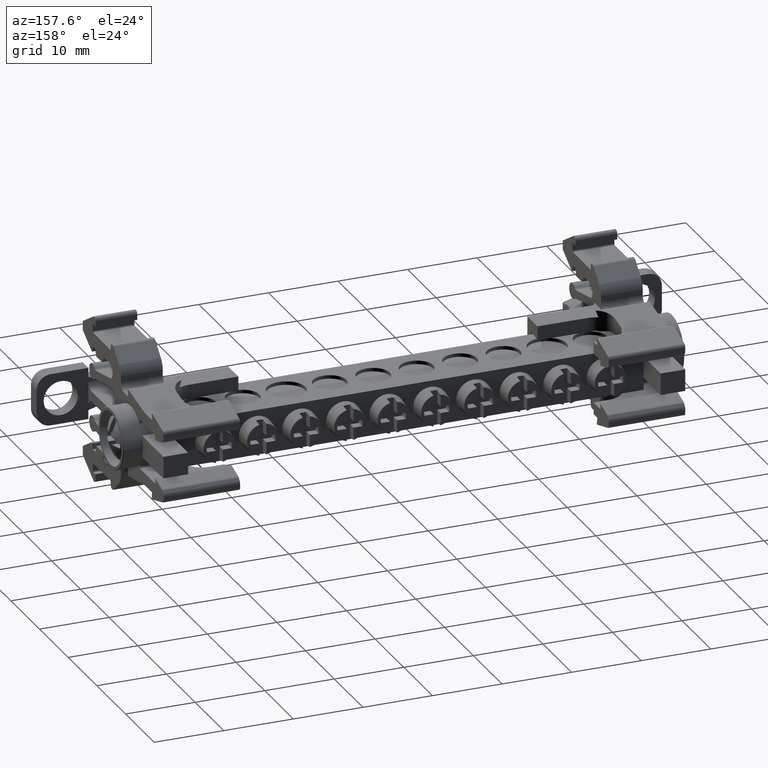
[diagram: clean part render]
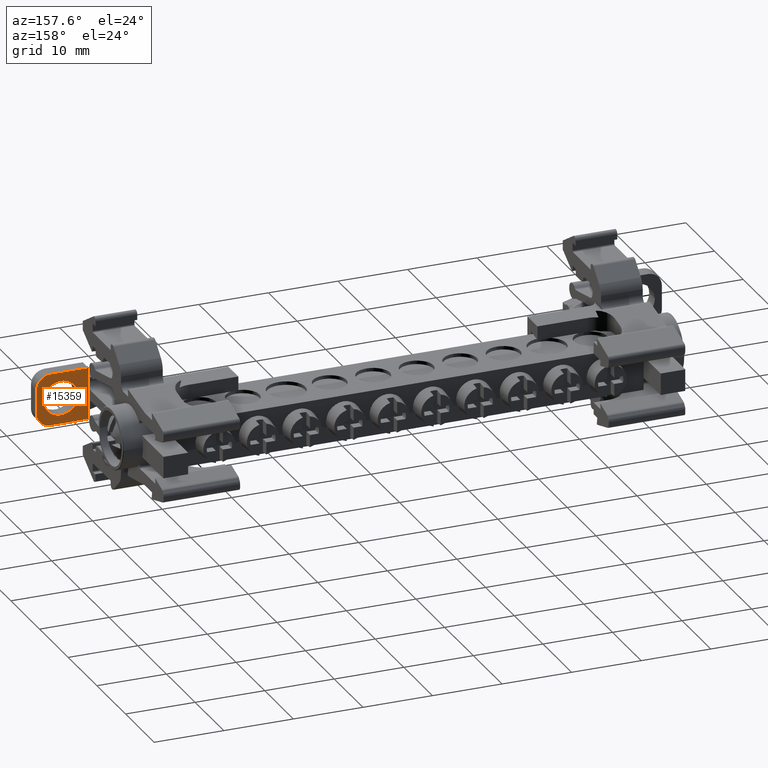
[diagram: same view with one face highlighted and labeled with its STEP entity id]
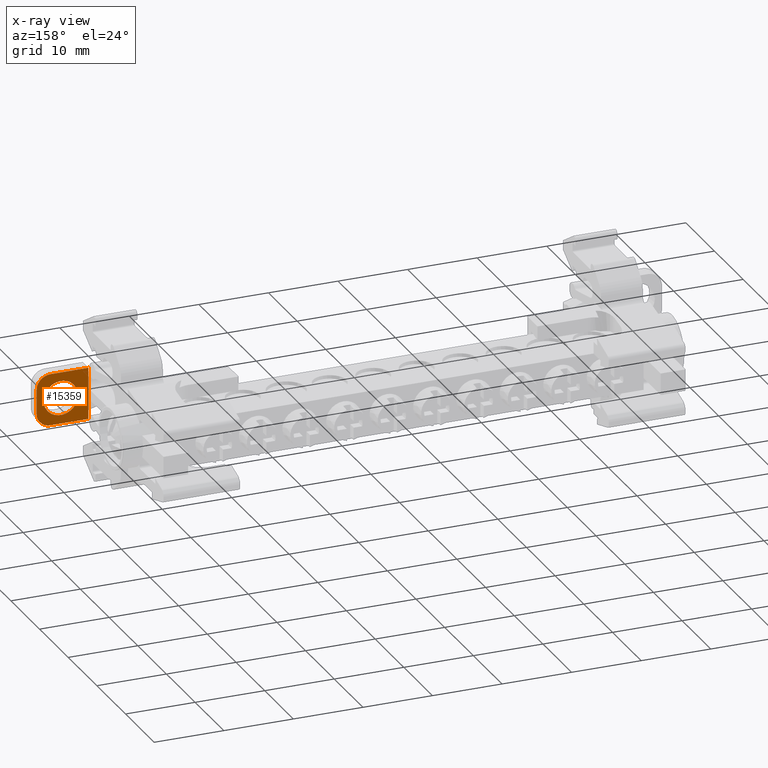
[diagram: x-ray of the same camera — body ghosted, the highlighted face saturated]
A machine part, auxiliary view. The second image highlights one B-rep face of the part: STEP entity #15359.
The next image is the same camera in x-ray: the body ghosted, the highlighted face saturated — about 0% of this face is hidden behind the body in this view.
In plain terms, the highlighted planar face has unit normal (-0, 1, 0).
Its self-contained STEP definition (entity closure, byte-faithful):
#312 = AXIS2_PLACEMENT_3D ( 'NONE', #6938, #6937, #6928 ) ;
#895 = VECTOR ( 'NONE', #9784, 1000.000000000000000 ) ;
#1224 = CARTESIAN_POINT ( 'NONE',  ( -46.38164581438638800, -110.7558111477206900, 217.7248630735140600 ) ) ;
#1253 = CARTESIAN_POINT ( 'NONE',  ( -48.36164581438639900, -110.7558111477207100, 219.7048630735139900 ) ) ;
#1320 = CARTESIAN_POINT ( 'NONE',  ( -46.38164581438638800, -110.7558111299313700, 214.2422331528850100 ) ) ;
#1327 = CARTESIAN_POINT ( 'NONE',  ( -48.36164581438636400, -110.7558111299314000, 212.2622331528850700 ) ) ;
#1467 = CARTESIAN_POINT ( 'NONE',  ( -53.82164581438635800, -110.7558110765636300, 218.3875323488580000 ) ) ;
#1503 = CARTESIAN_POINT ( 'NONE',  ( -53.82164581438637200, -110.7558111240017500, 219.7048630735139900 ) ) ;
#1520 = CARTESIAN_POINT ( 'NONE',  ( -53.82164581438632200, -110.7558111002826800, 213.5675638474400300 ) ) ;
#1707 = CARTESIAN_POINT ( 'NONE',  ( -53.82164581438629400, -110.7558111477208100, 219.7048630735139900 ) ) ;
#1715 = LINE ( 'NONE', #1707, #5722 ) ;
#1716 = DIRECTION ( 'NONE',  ( 1.000000000000000000, 1.101172293446148100E-014, -0.0000000000000000000 ) ) ;
#1752 = CARTESIAN_POINT ( 'NONE',  ( -48.36164581438639900, -110.7558111477206800, 217.7248630735140600 ) ) ;
#1790 = DIRECTION ( 'NONE',  ( -1.049160784736400100E-014, 1.000000000000000000, 2.802596928649635400E-045 ) ) ;
#1794 = DIRECTION ( 'NONE',  ( -1.000000000000000000, -7.008983741320423700E-015, 0.0000000000000000000 ) ) ;
#1807 = DIRECTION ( 'NONE',  ( -1.049160784736400100E-014, 1.000000000000000000, -9.044991914139729700E-037 ) ) ;
#1826 = CARTESIAN_POINT ( 'NONE',  ( -48.36164581438639900, -110.7558111121420700, 214.2422331528850100 ) ) ;
#1833 = DIRECTION ( 'NONE',  ( 1.000000000000000000, 7.008983741320423700E-015, 0.0000000000000000000 ) ) ;
#2912 = EDGE_CURVE ( 'NONE', #3584, #21435, #18791, .T. ) ;
#3076 = EDGE_CURVE ( 'NONE', #21444, #21460, #16243, .T. ) ;
#3584 = VERTEX_POINT ( 'NONE', #16282 ) ;
#4274 = VERTEX_POINT ( 'NONE', #6004 ) ;
#4299 = VERTEX_POINT ( 'NONE', #6124 ) ;
#5721 = CIRCLE ( 'NONE', #5731, 1.980000000000002600 ) ;
#5722 = VECTOR ( 'NONE', #1716, 1000.000000000000000 ) ;
#5723 = VECTOR ( 'NONE', #12213, 1000.000000000000000 ) ;
#5731 = AXIS2_PLACEMENT_3D ( 'NONE', #1752, #1790, #1794 ) ;
#5734 = CIRCLE ( 'NONE', #5736, 2.474999999999997900 ) ;
#5736 = AXIS2_PLACEMENT_3D ( 'NONE', #12210, #12185, #12186 ) ;
#5738 = CIRCLE ( 'NONE', #5748, 1.980000000000002600 ) ;
#5748 = AXIS2_PLACEMENT_3D ( 'NONE', #1826, #1807, #1833 ) ;
#5820 = VECTOR ( 'NONE', #11737, 1000.000000000000000 ) ;
#6004 = CARTESIAN_POINT ( 'NONE',  ( -52.33664581438639400, -110.7558111477206400, 215.9835481131995000 ) ) ;
#6124 = CARTESIAN_POINT ( 'NONE',  ( -47.38664581438639800, -110.7558111477205800, 215.9835481131995000 ) ) ;
#6928 = DIRECTION ( 'NONE',  ( -1.000000000000000000, -1.101172293446148100E-014, 0.0000000000000000000 ) ) ;
#6929 = PLANE ( 'NONE',  #312 ) ;
#6933 = FACE_OUTER_BOUND ( 'NONE', #8145, .T. ) ;
#6937 = DIRECTION ( 'NONE',  ( -1.101172293446148100E-014, 1.000000000000000000, 0.0000000000000000000 ) ) ;
#6938 = CARTESIAN_POINT ( 'NONE',  ( -53.82164581438629400, -110.7558111477208100, 188.2738655272060600 ) ) ;
#6942 = FACE_BOUND ( 'NONE', #8173, .T. ) ;
#8145 = EDGE_LOOP ( 'NONE', ( #20038, #20010, #20016, #20018, #20034, #20003, #19333, #19320 ) ) ;
#8173 = EDGE_LOOP ( 'NONE', ( #19318, #19335 ) ) ;
#9755 = LINE ( 'NONE', #9779, #895 ) ;
#9779 = CARTESIAN_POINT ( 'NONE',  ( -53.82164581438627200, -110.7558110765636300, 188.2738655272060600 ) ) ;
#9784 = DIRECTION ( 'NONE',  ( 2.470852055924995400E-015, 2.747299447020945000E-029, -1.000000000000000000 ) ) ;
#11706 = LINE ( 'NONE', #11708, #5820 ) ;
#11708 = CARTESIAN_POINT ( 'NONE',  ( -53.82164581438629400, -110.7558111477208100, 212.2622331528850700 ) ) ;
#11737 = DIRECTION ( 'NONE',  ( -1.000000000000000000, -1.101172293446148100E-014, 0.0000000000000000000 ) ) ;
#11953 = CARTESIAN_POINT ( 'NONE',  ( -46.38164581438638800, -110.7558111477207200, 188.2738655272060600 ) ) ;
#12185 = DIRECTION ( 'NONE',  ( 1.101172293446148100E-014, -1.000000000000000000, -0.0000000000000000000 ) ) ;
#12186 = DIRECTION ( 'NONE',  ( -1.000000000000000000, -1.121437398611270200E-014, 0.0000000000000000000 ) ) ;
#12210 = CARTESIAN_POINT ( 'NONE',  ( -49.86164581438639200, -110.7558111477206100, 215.9835481131995000 ) ) ;
#12213 = DIRECTION ( 'NONE',  ( -0.0000000000000000000, -0.0000000000000000000, -1.000000000000000000 ) ) ;
#12326 = DIRECTION ( 'NONE',  ( 1.101172293446148100E-014, -1.000000000000000000, -0.0000000000000000000 ) ) ;
#12331 = DIRECTION ( 'NONE',  ( -1.000000000000000000, -1.121437398611270200E-014, 0.0000000000000000000 ) ) ;
#12344 = CARTESIAN_POINT ( 'NONE',  ( -49.86164581438639200, -110.7558111477206100, 215.9835481131995000 ) ) ;
#12417 = LINE ( 'NONE', #11953, #5723 ) ;
#13252 = VECTOR ( 'NONE', #18797, 1000.000000000000000 ) ;
#13295 = VECTOR ( 'NONE', #16249, 1000.000000000000000 ) ;
#15359 = ADVANCED_FACE ( 'NONE', ( #6933, #6942 ), #6929, .T. ) ;
#15846 = EDGE_CURVE ( 'NONE', #21444, #21435, #9755, .T. ) ;
#16242 = CARTESIAN_POINT ( 'NONE',  ( -53.82164581438627200, -110.7558110765636300, 188.2738655272060600 ) ) ;
#16243 = LINE ( 'NONE', #16242, #13295 ) ;
#16249 = DIRECTION ( 'NONE',  ( -2.470852055924995400E-015, -2.747299447020945000E-029, 1.000000000000000000 ) ) ;
#16282 = CARTESIAN_POINT ( 'NONE',  ( -53.82164581438635800, -110.7558111398144500, 212.2622331528850700 ) ) ;
#17007 = EDGE_CURVE ( 'NONE', #4274, #4299, #23554, .T. ) ;
#17973 = EDGE_CURVE ( 'NONE', #20361, #3584, #11706, .T. ) ;
#18452 = EDGE_CURVE ( 'NONE', #4299, #4274, #5734, .T. ) ;
#18507 = EDGE_CURVE ( 'NONE', #20368, #20347, #12417, .T. ) ;
#18525 = EDGE_CURVE ( 'NONE', #21460, #20354, #1715, .T. ) ;
#18555 = EDGE_CURVE ( 'NONE', #20354, #20368, #5721, .T. ) ;
#18612 = EDGE_CURVE ( 'NONE', #20347, #20361, #5738, .T. ) ;
#18746 = CARTESIAN_POINT ( 'NONE',  ( -53.82164581438627200, -110.7558111240017400, 188.2738655272060600 ) ) ;
#18791 = LINE ( 'NONE', #18746, #13252 ) ;
#18797 = DIRECTION ( 'NONE',  ( -2.470852055924995400E-015, -2.747299447020945000E-029, 1.000000000000000000 ) ) ;
#19318 = ORIENTED_EDGE ( 'NONE', *, *, #17007, .T. ) ;
#19320 = ORIENTED_EDGE ( 'NONE', *, *, #18507, .T. ) ;
#19333 = ORIENTED_EDGE ( 'NONE', *, *, #18555, .T. ) ;
#19335 = ORIENTED_EDGE ( 'NONE', *, *, #18452, .T. ) ;
#20003 = ORIENTED_EDGE ( 'NONE', *, *, #18525, .T. ) ;
#20010 = ORIENTED_EDGE ( 'NONE', *, *, #17973, .T. ) ;
#20016 = ORIENTED_EDGE ( 'NONE', *, *, #2912, .T. ) ;
#20018 = ORIENTED_EDGE ( 'NONE', *, *, #15846, .F. ) ;
#20034 = ORIENTED_EDGE ( 'NONE', *, *, #3076, .T. ) ;
#20038 = ORIENTED_EDGE ( 'NONE', *, *, #18612, .T. ) ;
#20347 = VERTEX_POINT ( 'NONE', #1320 ) ;
#20354 = VERTEX_POINT ( 'NONE', #1253 ) ;
#20361 = VERTEX_POINT ( 'NONE', #1327 ) ;
#20368 = VERTEX_POINT ( 'NONE', #1224 ) ;
#21435 = VERTEX_POINT ( 'NONE', #1520 ) ;
#21444 = VERTEX_POINT ( 'NONE', #1467 ) ;
#21460 = VERTEX_POINT ( 'NONE', #1503 ) ;
#23554 = CIRCLE ( 'NONE', #23582, 2.474999999999997900 ) ;
#23582 = AXIS2_PLACEMENT_3D ( 'NONE', #12344, #12326, #12331 ) ;